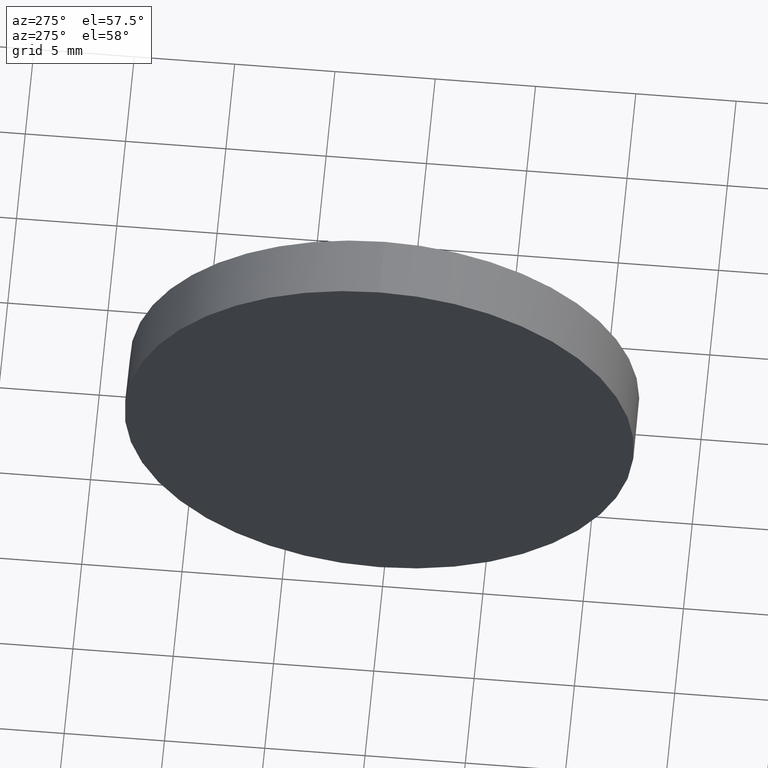
[diagram: clean part render]
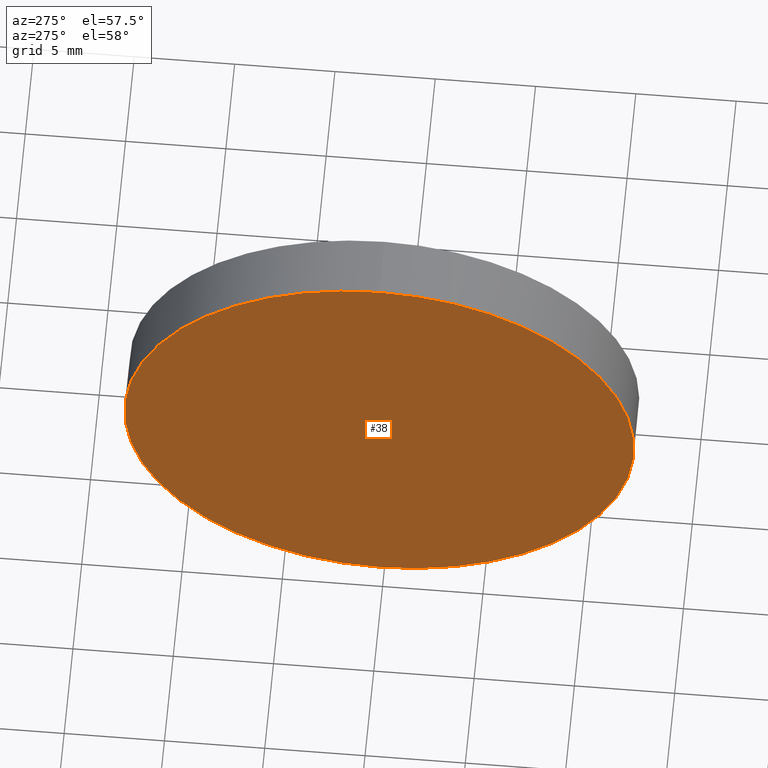
[diagram: same view with one face highlighted and labeled with its STEP entity id]
A machine part, auxiliary view. The second image highlights one B-rep face of the part: STEP entity #38.
In plain terms, the highlighted planar face has unit normal (1, 0, 0).
Its self-contained STEP definition (entity closure, byte-faithful):
#5 = ORIENTED_EDGE ( 'NONE', *, *, #123, .T. ) ;
#11 = AXIS2_PLACEMENT_3D ( 'NONE', #176, #23, #80 ) ;
#16 = CARTESIAN_POINT ( 'NONE',  ( 115.7736064308381300, 65.23355492641219700, -12.70000000000000300 ) ) ;
#20 = DIRECTION ( 'NONE',  ( 0.0000000000000000000, 0.0000000000000000000, -1.000000000000000000 ) ) ;
#23 = DIRECTION ( 'NONE',  ( -1.000000000000000000, -0.0000000000000000000, -0.0000000000000000000 ) ) ;
#26 = VERTEX_POINT ( 'NONE', #90 ) ;
#38 = ADVANCED_FACE ( 'NONE', ( #137 ), #46, .F. ) ;
#46 = PLANE ( 'NONE',  #71 ) ;
#50 = DIRECTION ( 'NONE',  ( 0.0000000000000000000, 0.0000000000000000000, 1.000000000000000000 ) ) ;
#71 = AXIS2_PLACEMENT_3D ( 'NONE', #114, #160, #20 ) ;
#74 = CIRCLE ( 'NONE', #110, 12.70000000000000300 ) ;
#79 = DIRECTION ( 'NONE',  ( -1.000000000000000000, -0.0000000000000000000, -0.0000000000000000000 ) ) ;
#80 = DIRECTION ( 'NONE',  ( 0.0000000000000000000, 0.0000000000000000000, 1.000000000000000000 ) ) ;
#90 = CARTESIAN_POINT ( 'NONE',  ( 115.7736064308381300, 65.23355492641219700, 12.70000000000000300 ) ) ;
#103 = CARTESIAN_POINT ( 'NONE',  ( 115.7736064308381300, 65.23355492641219700, 0.0000000000000000000 ) ) ;
#110 = AXIS2_PLACEMENT_3D ( 'NONE', #103, #79, #50 ) ;
#114 = CARTESIAN_POINT ( 'NONE',  ( 115.7736064308381300, 65.23355492641219700, 0.0000000000000000000 ) ) ;
#123 = EDGE_CURVE ( 'NONE', #26, #145, #74, .T. ) ;
#137 = FACE_OUTER_BOUND ( 'NONE', #153, .T. ) ;
#140 = EDGE_CURVE ( 'NONE', #145, #26, #183, .T. ) ;
#145 = VERTEX_POINT ( 'NONE', #16 ) ;
#153 = EDGE_LOOP ( 'NONE', ( #5, #156 ) ) ;
#156 = ORIENTED_EDGE ( 'NONE', *, *, #140, .T. ) ;
#160 = DIRECTION ( 'NONE',  ( 1.000000000000000000, 0.0000000000000000000, 0.0000000000000000000 ) ) ;
#176 = CARTESIAN_POINT ( 'NONE',  ( 115.7736064308381300, 65.23355492641219700, 0.0000000000000000000 ) ) ;
#183 = CIRCLE ( 'NONE', #11, 12.70000000000000300 ) ;